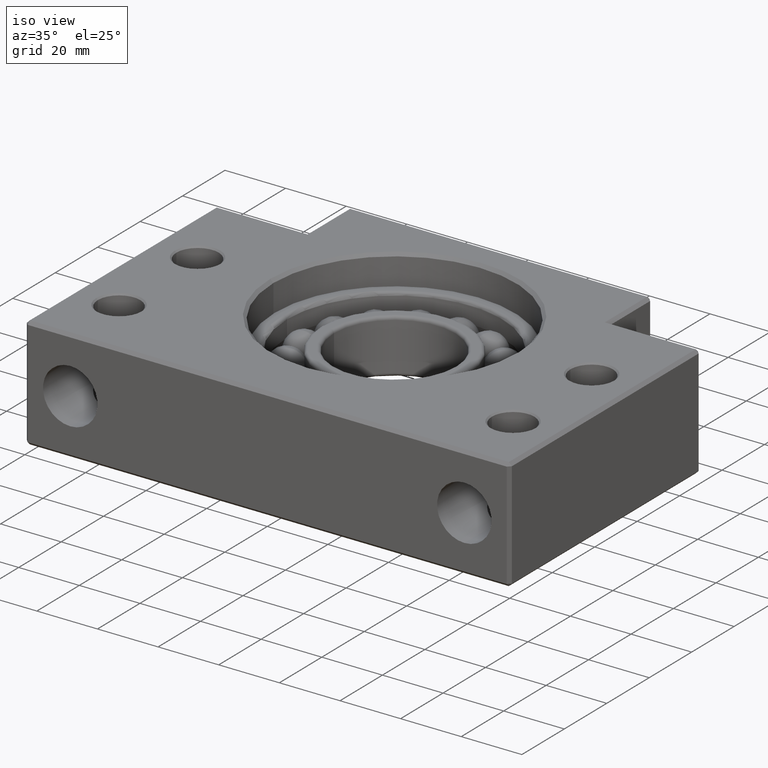
[diagram: clean part render]
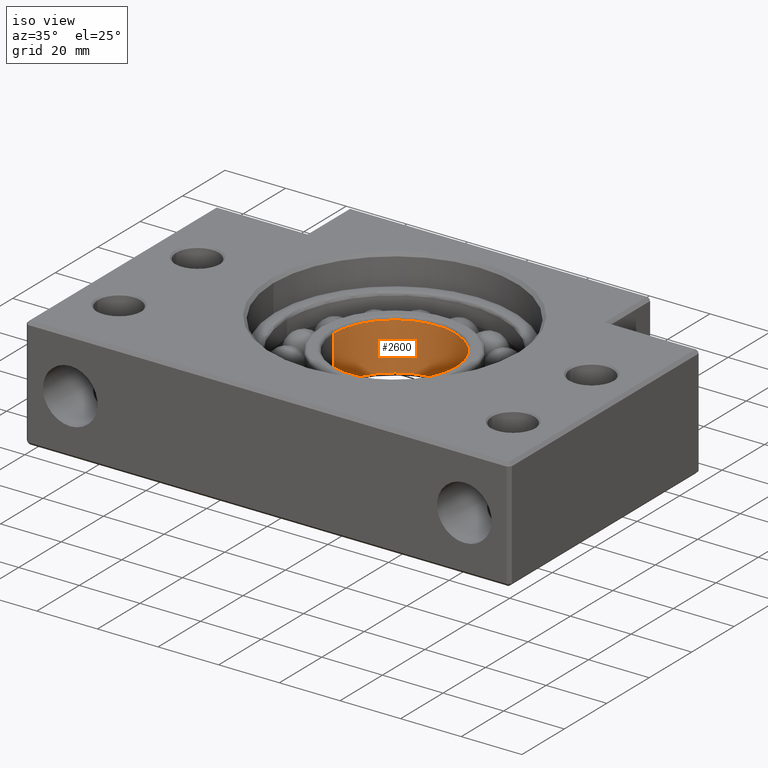
[diagram: same view with one face highlighted and labeled with its STEP entity id]
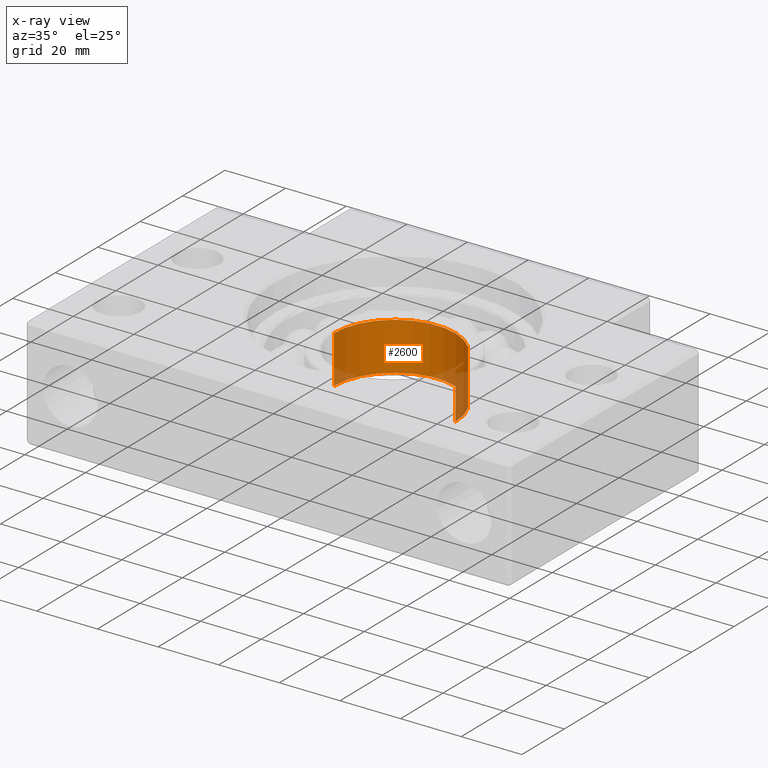
[diagram: x-ray of the same camera — body ghosted, the highlighted face saturated]
A machine part, iso view. The second image highlights one B-rep face of the part: STEP entity #2600.
The next image is the same camera in x-ray: the body ghosted, the highlighted face saturated — about 13% of this face is hidden behind the body in this view.
In plain terms, the highlighted cylindrical surface (partial cylindrical patch) has radius 20 mm, axis along (-0, -0, 1).
Its self-contained STEP definition (entity closure, byte-faithful):
#333 = VERTEX_POINT ( 'NONE', #1329 ) ;
#340 = EDGE_CURVE ( 'NONE', #333, #442, #1315, .T. ) ;
#442 = VERTEX_POINT ( 'NONE', #1712 ) ;
#1311 = DIRECTION ( 'NONE',  ( 1.000000000000000000, 0.0000000000000000000, 0.0000000000000000000 ) ) ;
#1312 = DIRECTION ( 'NONE',  ( -0.0000000000000000000, -0.0000000000000000000, 1.000000000000000000 ) ) ;
#1313 = CARTESIAN_POINT ( 'NONE',  ( 9.143964685418714300E-015, 60.00000000000000000, -7.899999999999997700 ) ) ;
#1314 = AXIS2_PLACEMENT_3D ( 'NONE', #1313, #1312, #1311 ) ;
#1315 = CIRCLE ( 'NONE', #1314, 20.00000000000000400 ) ;
#1329 = CARTESIAN_POINT ( 'NONE',  ( 20.00000000000001400, 60.00000000000000000, -7.899999999999997700 ) ) ;
#1712 = CARTESIAN_POINT ( 'NONE',  ( -19.99999999999999300, 60.00000000000000000, -7.899999999999997700 ) ) ;
#2560 = ORIENTED_EDGE ( 'NONE', *, *, #2638, .T. ) ;
#2571 = ORIENTED_EDGE ( 'NONE', *, *, #2656, .T. ) ;
#2593 = ORIENTED_EDGE ( 'NONE', *, *, #340, .F. ) ;
#2595 = ORIENTED_EDGE ( 'NONE', *, *, #2641, .F. ) ;
#2598 = EDGE_LOOP ( 'NONE', ( #2595, #2593, #2560, #2571 ) ) ;
#2600 = ADVANCED_FACE ( 'NONE', ( #3209 ), #3208, .F. ) ;
#2620 = VERTEX_POINT ( 'NONE', #3236 ) ;
#2638 = EDGE_CURVE ( 'NONE', #333, #2620, #3257, .T. ) ;
#2640 = VERTEX_POINT ( 'NONE', #3248 ) ;
#2641 = EDGE_CURVE ( 'NONE', #442, #2640, #3247, .T. ) ;
#2656 = EDGE_CURVE ( 'NONE', #2620, #2640, #3279, .T. ) ;
#3203 = DIRECTION ( 'NONE',  ( 1.000000000000000000, 0.0000000000000000000, 0.0000000000000000000 ) ) ;
#3204 = DIRECTION ( 'NONE',  ( -0.0000000000000000000, -0.0000000000000000000, 1.000000000000000000 ) ) ;
#3205 = CARTESIAN_POINT ( 'NONE',  ( 9.143964685418714300E-015, 60.00000000000000000, 8.839432060501902600 ) ) ;
#3206 = AXIS2_PLACEMENT_3D ( 'NONE', #3205, #3204, #3203 ) ;
#3208 = CYLINDRICAL_SURFACE ( 'NONE', #3206, 20.00000000000000400 ) ;
#3209 = FACE_OUTER_BOUND ( 'NONE', #2598, .T. ) ;
#3236 = CARTESIAN_POINT ( 'NONE',  ( 20.00000000000001400, 60.00000000000000000, 7.900000000000002100 ) ) ;
#3246 = CARTESIAN_POINT ( 'NONE',  ( -19.99999999999999300, 60.00000000000000000, 8.839432060501902600 ) ) ;
#3247 = LINE ( 'NONE', #3246, #3307 ) ;
#3248 = CARTESIAN_POINT ( 'NONE',  ( -19.99999999999999300, 60.00000000000000000, 7.900000000000002100 ) ) ;
#3254 = DIRECTION ( 'NONE',  ( -0.0000000000000000000, -0.0000000000000000000, 1.000000000000000000 ) ) ;
#3255 = VECTOR ( 'NONE', #3254, 1000.000000000000000 ) ;
#3256 = CARTESIAN_POINT ( 'NONE',  ( 20.00000000000001400, 60.00000000000000000, 8.839432060501902600 ) ) ;
#3257 = LINE ( 'NONE', #3256, #3255 ) ;
#3279 = CIRCLE ( 'NONE', #3336, 20.00000000000000400 ) ;
#3306 = DIRECTION ( 'NONE',  ( -0.0000000000000000000, -0.0000000000000000000, 1.000000000000000000 ) ) ;
#3307 = VECTOR ( 'NONE', #3306, 1000.000000000000000 ) ;
#3333 = DIRECTION ( 'NONE',  ( 1.000000000000000000, 0.0000000000000000000, 0.0000000000000000000 ) ) ;
#3334 = DIRECTION ( 'NONE',  ( -0.0000000000000000000, -0.0000000000000000000, 1.000000000000000000 ) ) ;
#3335 = CARTESIAN_POINT ( 'NONE',  ( 9.143964685418714300E-015, 60.00000000000000000, 7.900000000000002100 ) ) ;
#3336 = AXIS2_PLACEMENT_3D ( 'NONE', #3335, #3334, #3333 ) ;